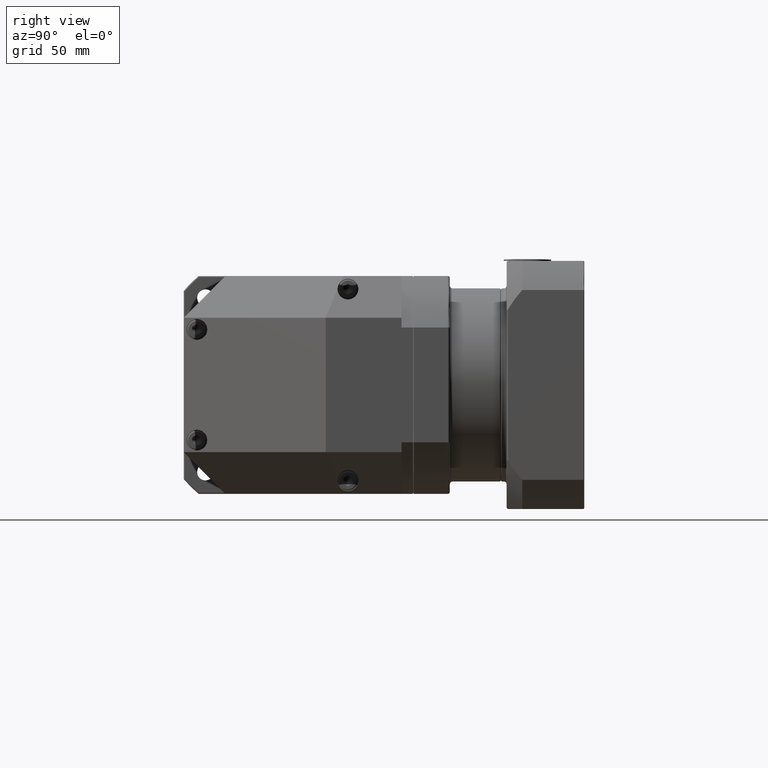
[diagram: clean part render]
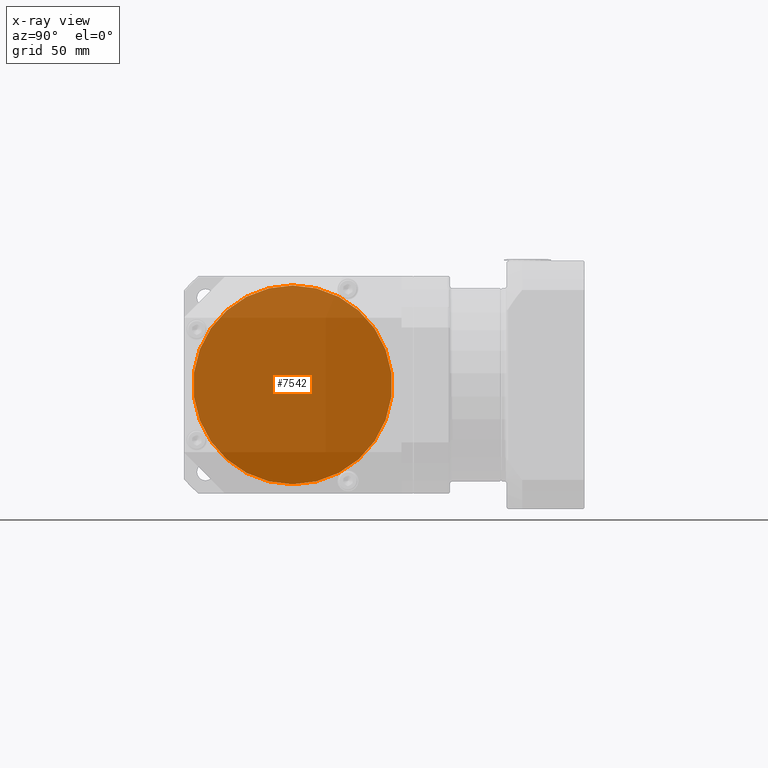
[diagram: x-ray — body ghosted, one internal face saturated and labeled with its STEP entity id]
A machine part, right view, then the same camera in x-ray: the body is ghosted and one INTERNAL B-rep face — a face not visible from any outside direction — is saturated and labeled: STEP entity #7542.
In plain terms, the highlighted planar face has unit normal (1, -0, 0).
Its self-contained STEP definition (entity closure, byte-faithful):
#1025=PLANE('',#8134);
#1999=FACE_OUTER_BOUND('',#2558,.T.);
#2558=EDGE_LOOP('',(#5457));
#3336=CIRCLE('',#8133,52.5);
#3759=VERTEX_POINT('',#11476);
#4463=EDGE_CURVE('',#3759,#3759,#3336,.T.);
#5457=ORIENTED_EDGE('',*,*,#4463,.F.);
#7542=ADVANCED_FACE('',(#1999),#1025,.T.);
#8133=AXIS2_PLACEMENT_3D('',#11477,#9160,#9161);
#8134=AXIS2_PLACEMENT_3D('',#11478,#9162,#9163);
#9160=DIRECTION('center_axis',(-1.,1.21430643318361E-16,-1.36246471463887E-16));
#9161=DIRECTION('ref_axis',(-1.36246471463888E-16,-3.59656965667667E-15,
1.));
#9162=DIRECTION('center_axis',(1.,-1.21430643318361E-16,1.36246471463887E-16));
#9163=DIRECTION('ref_axis',(0.,3.5527136788005E-15,-1.));
#11476=CARTESIAN_POINT('',(52.6985464316236,-29.5431641967607,-4.88427888357883));
#11477=CARTESIAN_POINT('Origin',(52.6985464316236,-29.5431641967609,47.6157211164212));
#11478=CARTESIAN_POINT('Origin',(52.6985464316236,-29.5431641967609,47.6157211164212));